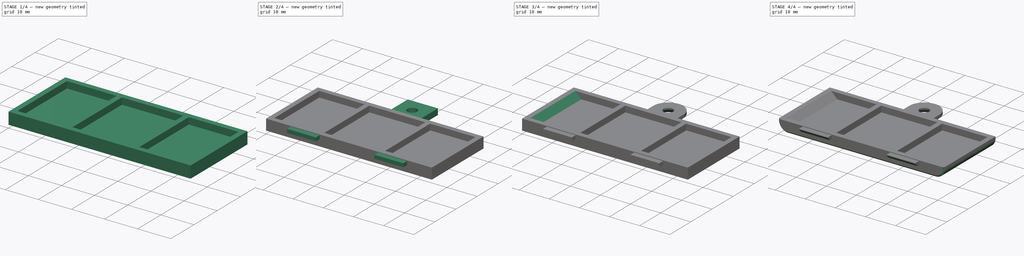
[diagram: build sequence overview — one tinted view per stage of 4, left to right]
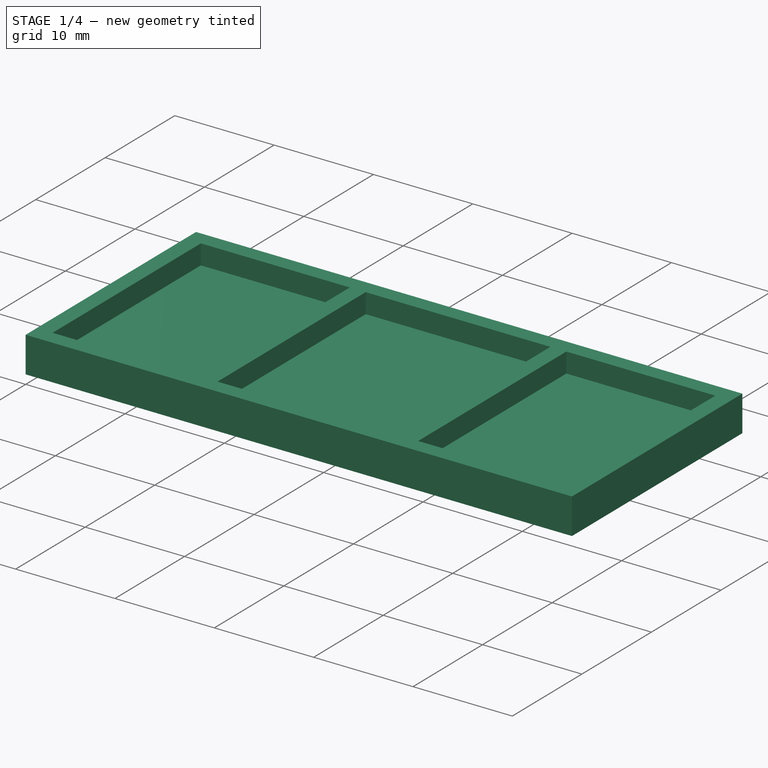
[diagram: stage 1 of 4 — iso view after this stage's code; geometry added in this stage tinted green]
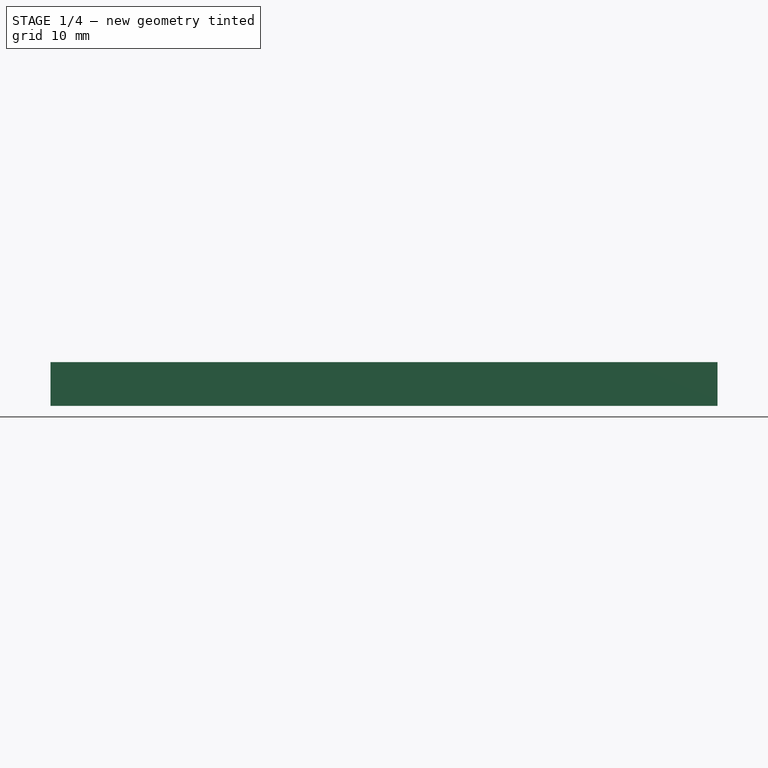
[diagram: stage 1 of 4 — front view after this stage's code; geometry added in this stage tinted green]
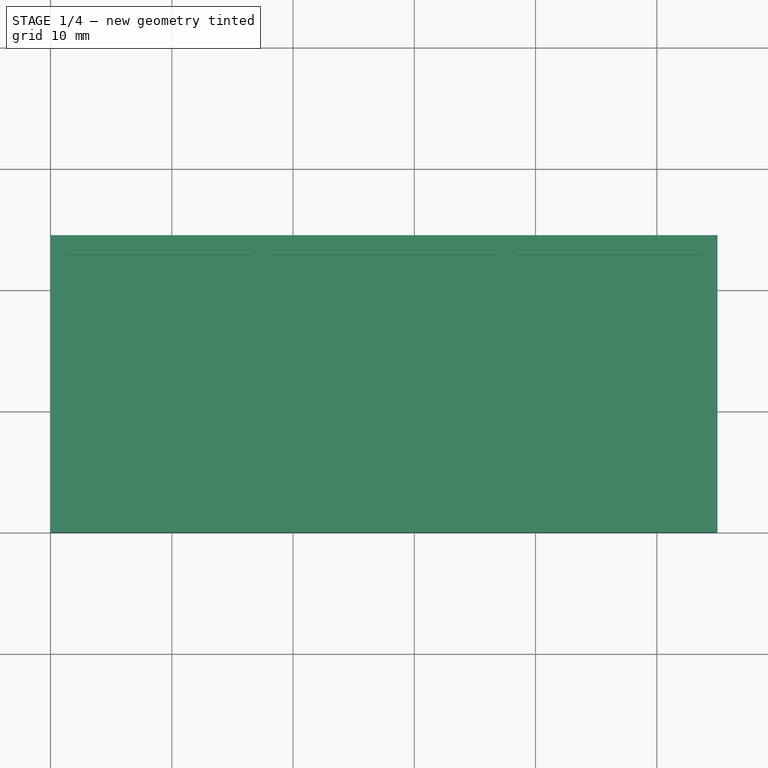
[diagram: stage 1 of 4 — top view after this stage's code; geometry added in this stage tinted green]
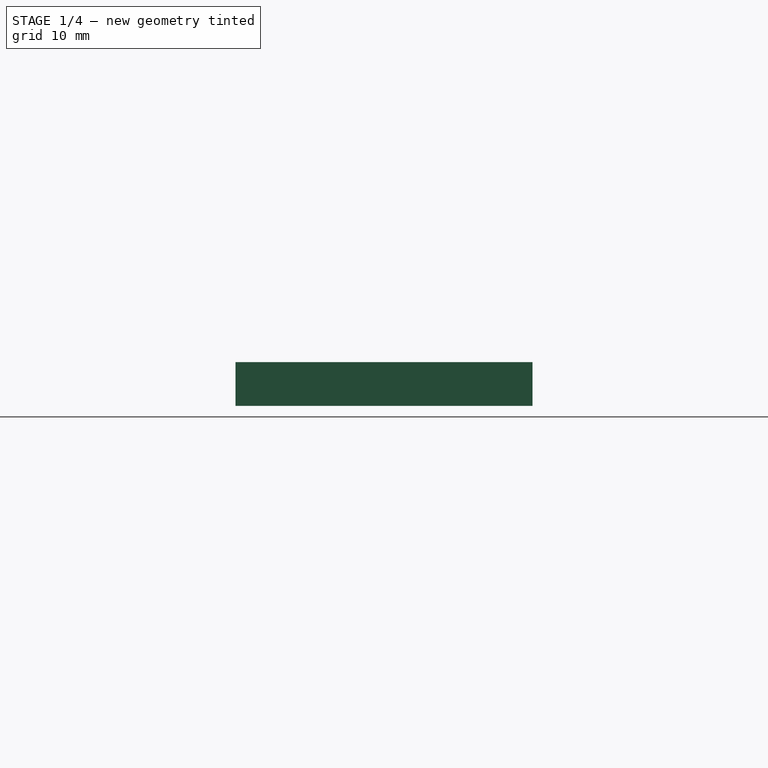
[diagram: stage 1 of 4 — right view after this stage's code; geometry added in this stage tinted green]
FCSTD DOCUMENT  (FreeCAD 0.16R)
Label: battery_lid_fillet
License: All rights reserved
LicenseURL: http://en.wikipedia.org/wiki/All_rights_reserved
objects: Sketcher::SketchObject×6, PartDesign::Chamfer×5, PartDesign::Pad×4, PartDesign::Pocket×2, PartDesign::Fillet×2, App::DocumentObjectGroup×1
note: 25 computed .brp shape members not serialized (recipe doc carries the construction recipe); baked Part::Feature solids carry a one-line shape summary decoded from their .brp

FEATURE [App::DocumentObjectGroup] Group
FEATURE [Sketcher::SketchObject] Sketch
  sketch-geometry (4):
    g0: LineSegment StartX=0 StartY=0 StartZ=0 EndX=55 EndY=0 EndZ=0
    g1: LineSegment StartX=55 StartY=0 StartZ=0 EndX=55 EndY=24.5 EndZ=0
    g2: LineSegment StartX=55 StartY=24.5 StartZ=0 EndX=0 EndY=24.5 EndZ=0
    g3: LineSegment StartX=0 StartY=24.5 StartZ=0 EndX=0 EndY=0 EndZ=0
  constraints (11):
    c: Coincident(g0,g1)
    c: Coincident(g1,g2)
    c: Coincident(g2,g3)
    c: Coincident(g3,g0)
    c: Horizontal(g0)
    c: Horizontal(g2)
    c: Vertical(g1)
    c: Vertical(g3)
    c: Coincident(g0,g-1)
    c: Distance(g3) = 24.5
    c: Distance(g0) = 55
FEATURE [PartDesign::Pad] Pad
  Length = 3.6
  Length2 = 100
  Sketch = -> Sketch
  Type = 0
FEATURE [Sketcher::SketchObject] Sketch001
  ExternalGeometry = -> [Pad]
  Placement = pos=(0,0,3.6) rot=(0,0,1;0rad)
  Support = -> Pad [Face6]
  sketch-geometry (4):
    g0: LineSegment StartX=1.6 StartY=22.9 StartZ=0 EndX=53.4 EndY=22.9 EndZ=0
    g1: LineSegment StartX=53.4 StartY=22.9 StartZ=0 EndX=53.4 EndY=1.6 EndZ=0
    g2: LineSegment StartX=53.4 StartY=1.6 StartZ=0 EndX=1.6 EndY=1.6 EndZ=0
    g3: LineSegment StartX=1.6 StartY=1.6 StartZ=0 EndX=1.6 EndY=22.9 EndZ=0
  constraints (12):
    c: Coincident(g0,g1)
    c: Coincident(g1,g2)
    c: Coincident(g2,g3)
    c: Coincident(g3,g0)
    c: Horizontal(g0)
    c: Horizontal(g2)
    c: Vertical(g1)
    c: Vertical(g3)
    c: DistanceX(g-1,g2) = 1.6
    c: DistanceX(g1,g-6) = 1.6
    c: DistanceY(g0,g-5) = 1.6
    c: DistanceY(g-1,g2) = 1.6
FEATURE [PartDesign::Pocket] Pocket
  Length = 2
  Sketch = -> Sketch001
  Type = 0
FEATURE [Sketcher::SketchObject] Sketch002
  ExternalGeometry = -> [Pocket]
  Placement = pos=(0,0,1.6) rot=(0,0,1;0rad)
  Support = -> Pocket [Face11]
  sketch-geometry (8):
    g0: LineSegment StartX=16.6 StartY=22.9 StartZ=0 EndX=18.2 EndY=22.9 EndZ=0
    g1: LineSegment StartX=18.2 StartY=22.9 StartZ=0 EndX=18.2 EndY=1.6 EndZ=0
    g2: LineSegment StartX=18.2 StartY=1.6 StartZ=0 EndX=16.6 EndY=1.6 EndZ=0
    g3: LineSegment StartX=16.6 StartY=1.6 StartZ=0 EndX=16.6 EndY=22.9 EndZ=0
    g4: LineSegment StartX=36.8 StartY=22.9 StartZ=0 EndX=38.4 EndY=22.9 EndZ=0
    g5: LineSegment StartX=38.4 StartY=22.9 StartZ=0 EndX=38.4 EndY=1.6 EndZ=0
    g6: LineSegment StartX=38.4 StartY=1.6 StartZ=0 EndX=36.8 EndY=1.6 EndZ=0
    g7: LineSegment StartX=36.8 StartY=1.6 StartZ=0 EndX=36.8 EndY=22.9 EndZ=0
  constraints (24):
    c: Coincident(g0,g1)
    c: Coincident(g1,g2)
    c: Coincident(g2,g3)
    c: Coincident(g3,g0)
    c: Horizontal(g0)
    c: Horizontal(g2)
    c: Vertical(g1)
    c: Vertical(g3)
    c: PointOnObject(g0,g-3)
    c: PointOnObject(g1,g-4)
    c: Coincident(g4,g5)
    c: Coincident(g5,g6)
    c: Coincident(g6,g7)
    c: Coincident(g7,g4)
    c: Horizontal(g4)
    c: Horizontal(g6)
    c: Vertical(g5)
    c: Vertical(g7)
    c: PointOnObject(g5,g-4)
    c: DistanceX(g2,g1) = 1.6
    c: DistanceX(g6,g5) = 1.6
    c: PointOnObject(g4,g-3)
    c: DistanceX(g-4,g2) = 15
    c: DistanceX(g5,g-4) = 15
FEATURE [PartDesign::Pad] Pad001
  Length = 2
  Length2 = 100
  Sketch = -> Sketch002
  Type = 0
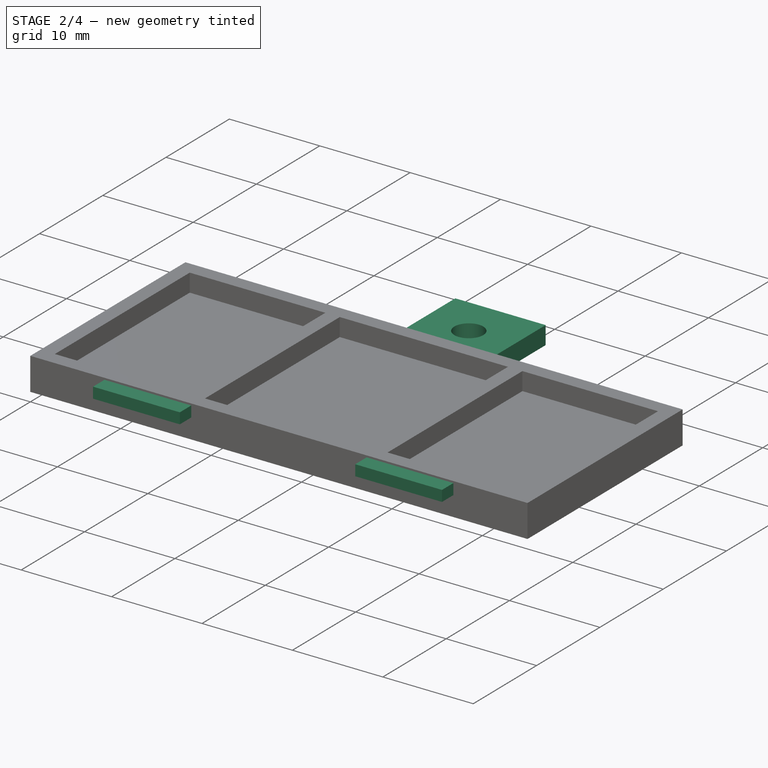
[diagram: stage 2 of 4 — iso view after this stage's code; geometry added in this stage tinted green]
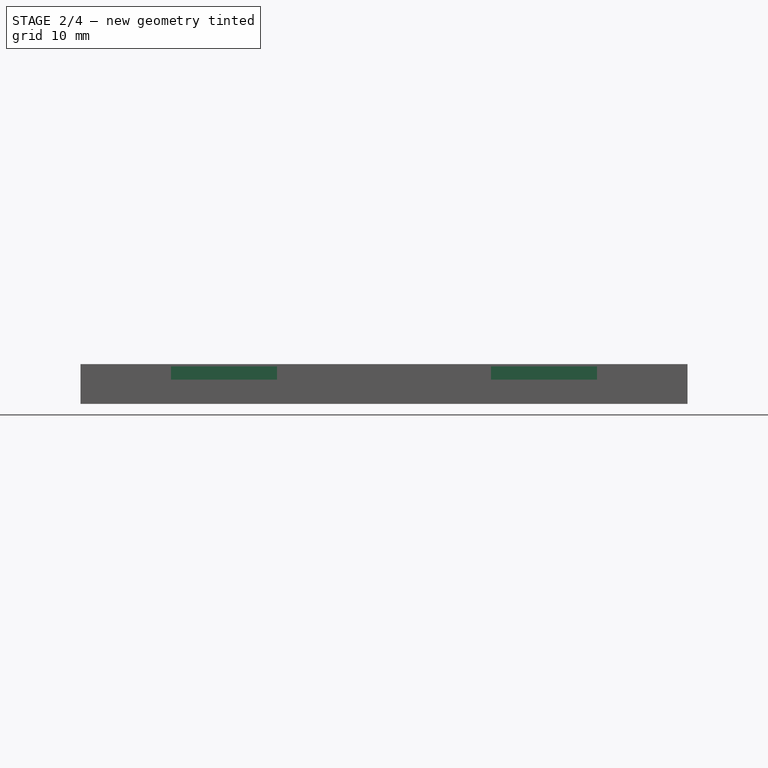
[diagram: stage 2 of 4 — front view after this stage's code; geometry added in this stage tinted green]
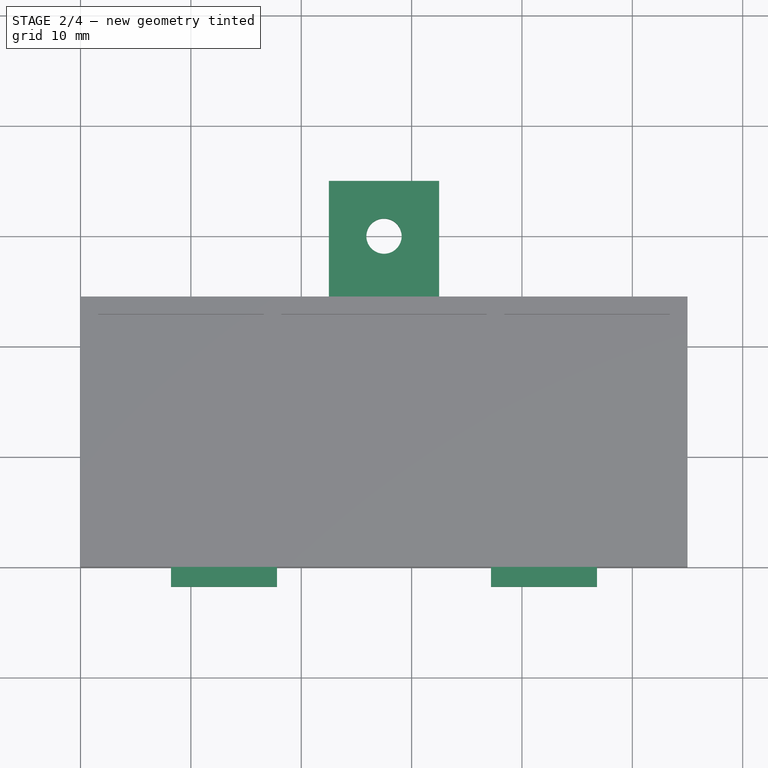
[diagram: stage 2 of 4 — top view after this stage's code; geometry added in this stage tinted green]
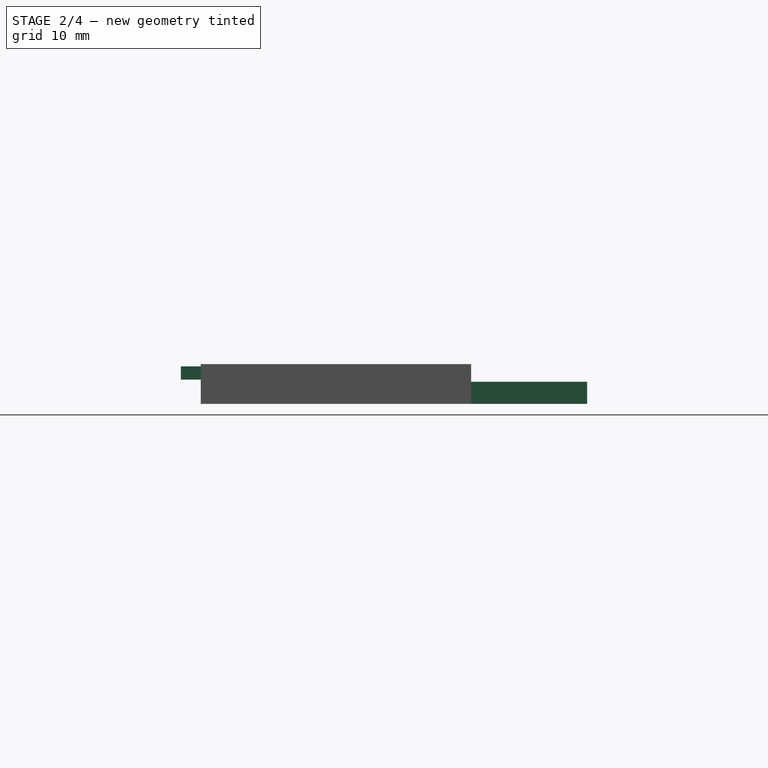
[diagram: stage 2 of 4 — right view after this stage's code; geometry added in this stage tinted green]
FEATURE [Sketcher::SketchObject] Sketch003
  ExternalGeometry = -> [Pad001]
  Placement = pos=(0,0,0) rot=(1,0,0;1.5708rad)
  Support = -> Pad001 [Face1]
  sketch-geometry (8):
    g0: LineSegment StartX=8.2 StartY=3.4 StartZ=0 EndX=17.8 EndY=3.4 EndZ=0
    g1: LineSegment StartX=17.8 StartY=3.4 StartZ=0 EndX=17.8 EndY=2.2 EndZ=0
    g2: LineSegment StartX=17.8 StartY=2.2 StartZ=0 EndX=8.2 EndY=2.2 EndZ=0
    g3: LineSegment StartX=8.2 StartY=2.2 StartZ=0 EndX=8.2 EndY=3.4 EndZ=0
    g4: LineSegment StartX=37.2 StartY=3.4 StartZ=0 EndX=46.8 EndY=3.4 EndZ=0
    g5: LineSegment StartX=46.8 StartY=3.4 StartZ=0 EndX=46.8 EndY=2.2 EndZ=0
    g6: LineSegment StartX=46.8 StartY=2.2 StartZ=0 EndX=37.2 EndY=2.2 EndZ=0
    g7: LineSegment StartX=37.2 StartY=2.2 StartZ=0 EndX=37.2 EndY=3.4 EndZ=0
  constraints (24):
    c: Coincident(g0,g1)
    c: Coincident(g1,g2)
    c: Coincident(g2,g3)
    c: Coincident(g3,g0)
    c: Horizontal(g0)
    c: Horizontal(g2)
    c: Vertical(g1)
    c: Vertical(g3)
    c: Coincident(g4,g5)
    c: Coincident(g5,g6)
    c: Coincident(g6,g7)
    c: Coincident(g7,g4)
    c: Horizontal(g4)
    c: Horizontal(g6)
    c: Vertical(g5)
    c: Vertical(g7)
    c: Equal(g0,g4)
    c: Equal(g1,g7)
    c: Distance(g2) = 9.6
    c: DistanceX(g-1,g2) = 8.2
    c: DistanceY(g-1,g2) = 2.2
    c: DistanceX(g5,g-4) = 8.2
    c: DistanceY(g-4,g5) = 2.2
    c: Distance(g3) = 1.2
FEATURE [PartDesign::Pad] Pad002
  Length = 1.8
  Length2 = 100
  Sketch = -> Sketch003
  Type = 0
FEATURE [Sketcher::SketchObject] Sketch004
  ExternalGeometry = -> [Pad002]
  Placement = pos=(0,24.5,0) rot=(0,0.707107,0.707107;3.14159rad)
  Support = -> Pad002 [Face2]
  sketch-geometry (4):
    g0: LineSegment StartX=-32.5 StartY=0 StartZ=0 EndX=-22.5 EndY=0 EndZ=0
    g1: LineSegment StartX=-22.5 StartY=0 StartZ=0 EndX=-22.5 EndY=2 EndZ=0
    g2: LineSegment StartX=-22.5 StartY=2 StartZ=0 EndX=-32.5 EndY=2 EndZ=0
    g3: LineSegment StartX=-32.5 StartY=2 StartZ=0 EndX=-32.5 EndY=0 EndZ=0
  constraints (12):
    c: Coincident(g0,g1)
    c: Coincident(g1,g2)
    c: Coincident(g2,g3)
    c: Coincident(g3,g0)
    c: Horizontal(g0)
    c: Horizontal(g2)
    c: Vertical(g1)
    c: Vertical(g3)
    c: PointOnObject(g0,g-1)
    c: DistanceX(g-3,g0) = 22.5
    c: DistanceX(g0,g-1) = 22.5
    c: Distance(g3) = 2
FEATURE [PartDesign::Pad] Pad003
  Length = 10.5
  Length2 = 100
  Sketch = -> Sketch004
  Type = 0
FEATURE [Sketcher::SketchObject] Sketch005
  ExternalGeometry = -> [Pad003]
  Placement = pos=(0,0,0) rot=(1,0,0;3.14159rad)
  Support = -> Pad003 [Face18]
  sketch-geometry (1):
    g0: Circle CenterX=27.5 CenterY=-30 CenterZ=0 NormalX=0 NormalY=0 NormalZ=1 Radius=1.6
  constraints (3):
    c: Radius(g0) = 1.6
    c: DistanceX(g-4,g0) = 5
    c: DistanceY(g0,g-4) = 5.5
FEATURE [PartDesign::Pocket] Pocket001
  Length = 5
  Sketch = -> Sketch005
  Type = 1
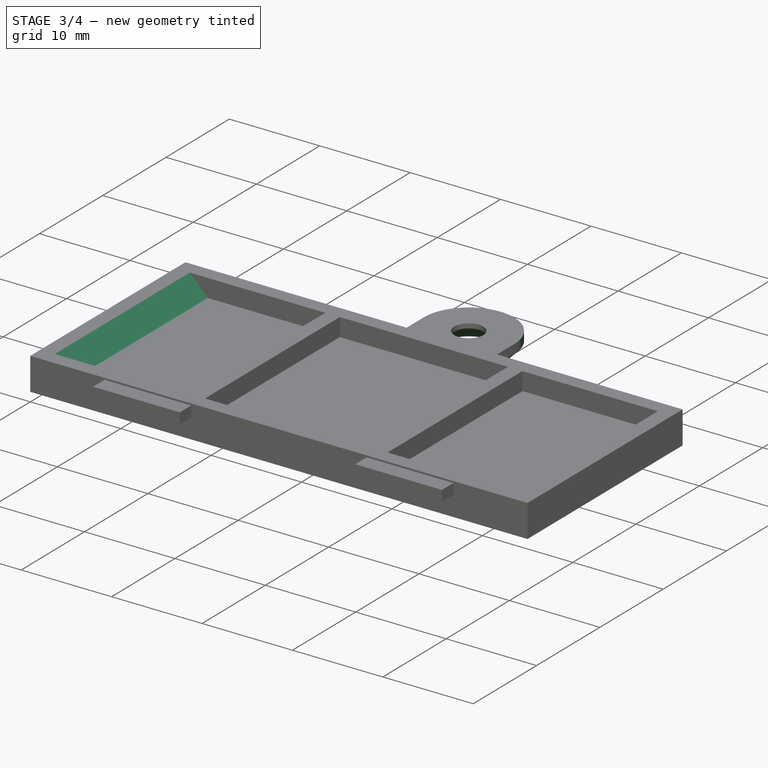
[diagram: stage 3 of 4 — iso view after this stage's code; geometry added in this stage tinted green]
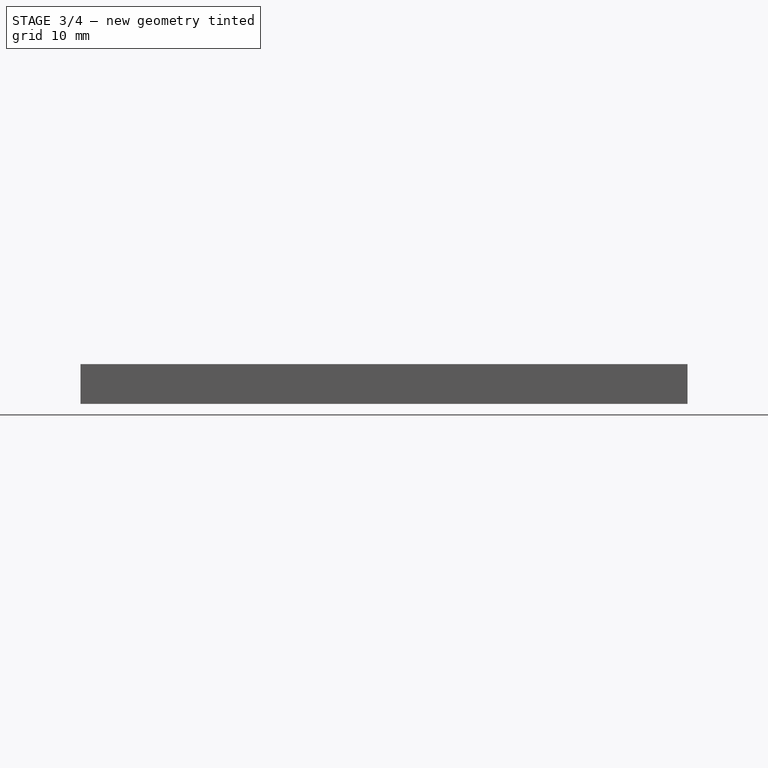
[diagram: stage 3 of 4 — front view after this stage's code; geometry added in this stage tinted green]
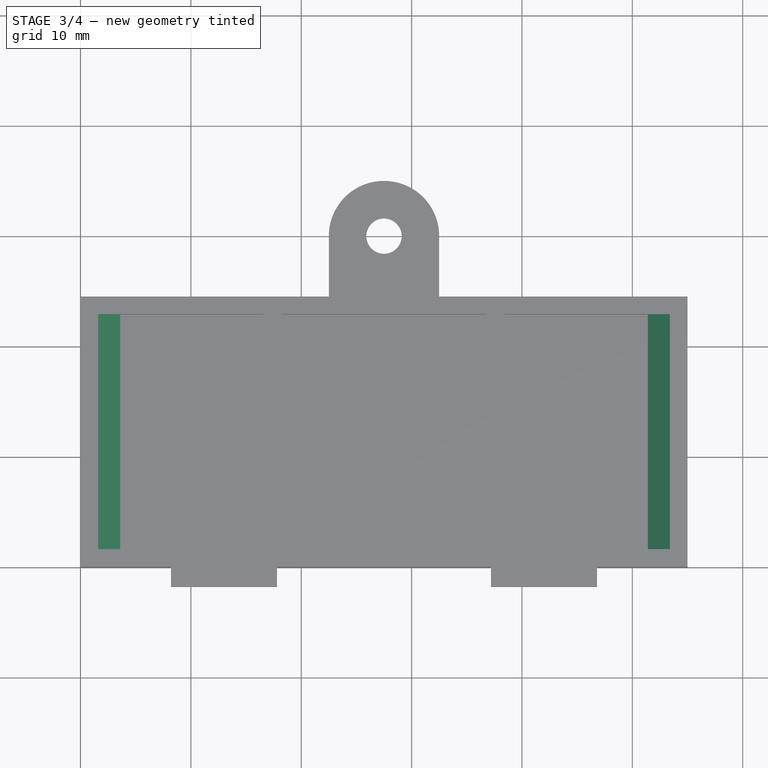
[diagram: stage 3 of 4 — top view after this stage's code; geometry added in this stage tinted green]
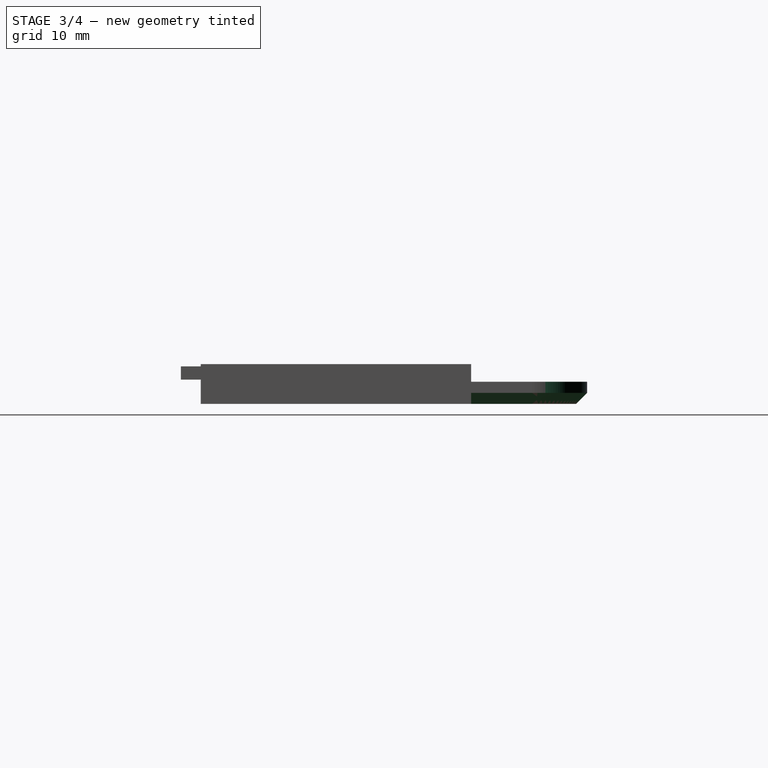
[diagram: stage 3 of 4 — right view after this stage's code; geometry added in this stage tinted green]
FEATURE [PartDesign::Chamfer] Chamfer
  Base = -> Pocket001 [Edge65,Edge87]
  Size = 1.99
FEATURE [PartDesign::Fillet] Fillet
  Base = -> Chamfer [Edge85,Edge91]
  Radius = 4.99
FEATURE [PartDesign::Chamfer] Chamfer001
  Base = -> Fillet [Edge4,Edge12,Edge22,Edge21,Edge20]
  Size = 1
FEATURE [PartDesign::Chamfer] Chamfer002
  Base = -> Chamfer001 [Edge33]
  Size = 1.5
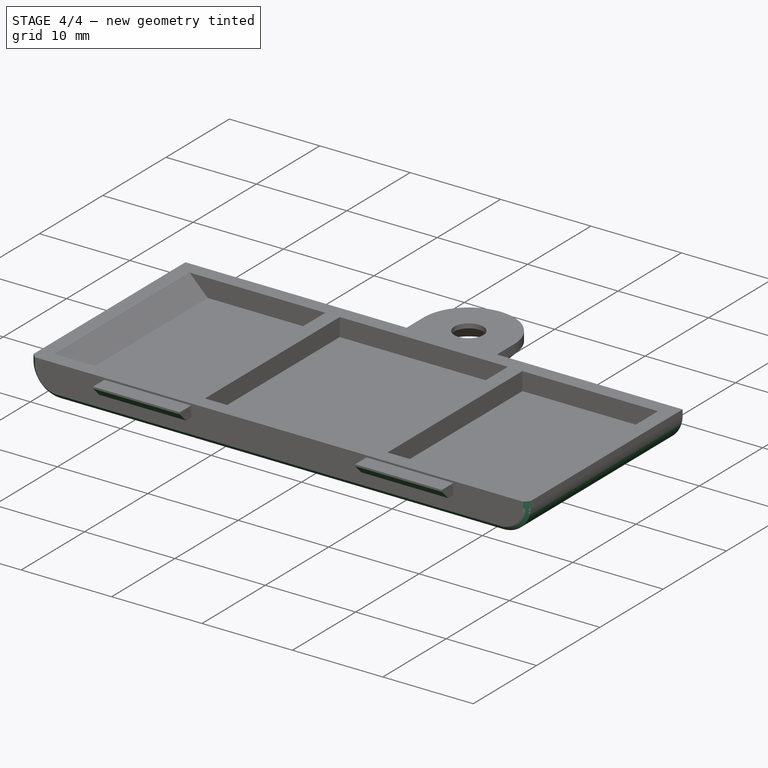
[diagram: stage 4 of 4 — iso view after this stage's code; geometry added in this stage tinted green]
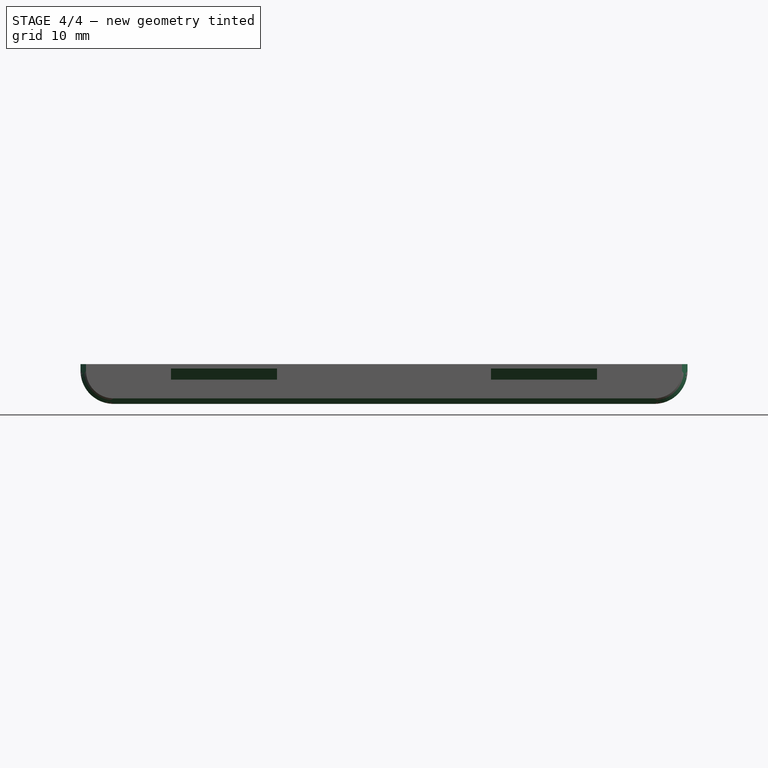
[diagram: stage 4 of 4 — front view after this stage's code; geometry added in this stage tinted green]
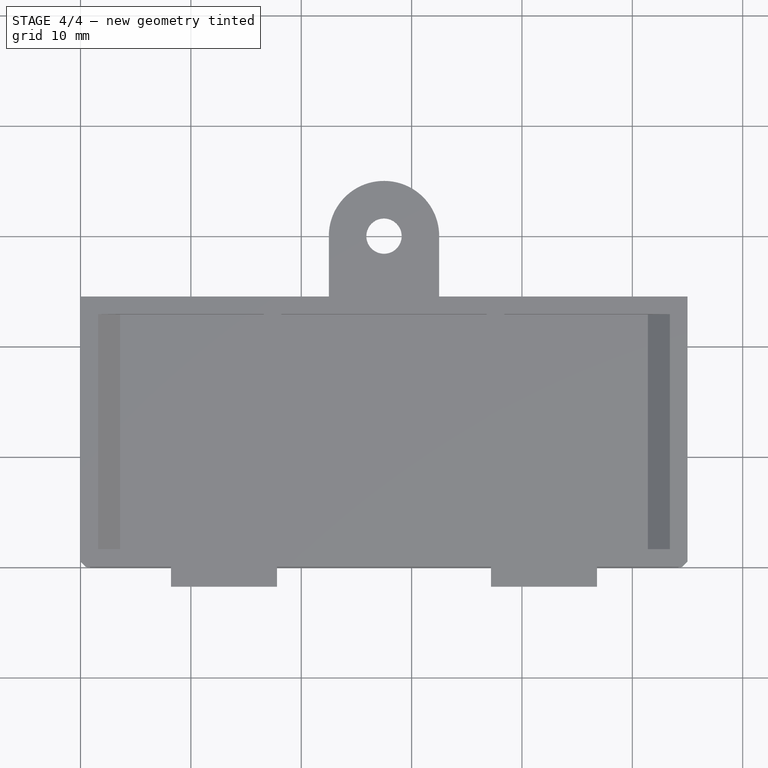
[diagram: stage 4 of 4 — top view after this stage's code; geometry added in this stage tinted green]
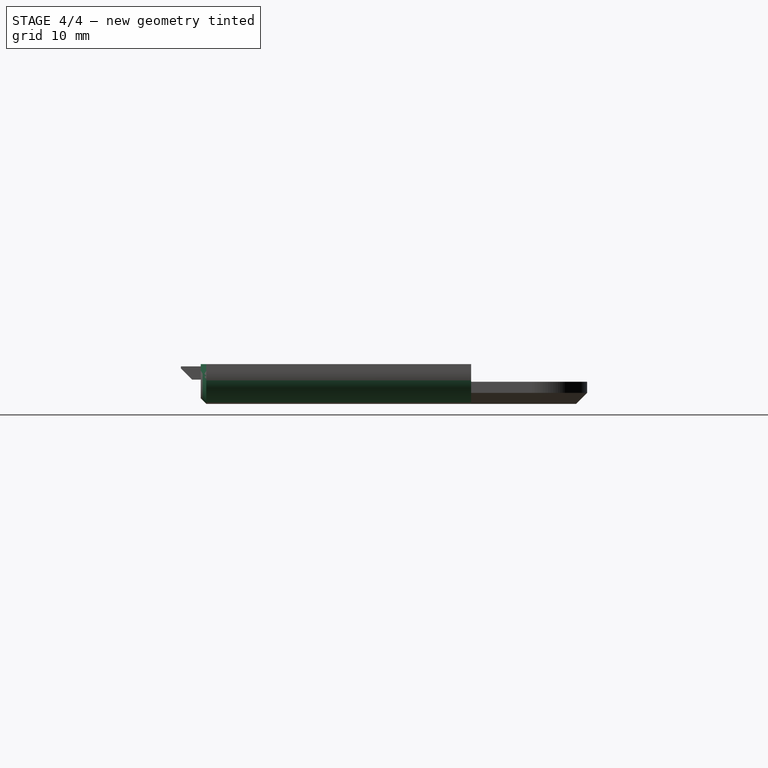
[diagram: stage 4 of 4 — right view after this stage's code; geometry added in this stage tinted green]
FEATURE [PartDesign::Chamfer] Chamfer003
  Base = -> Chamfer002 [Edge107,Edge99]
  Size = 1
FEATURE [PartDesign::Fillet] Fillet001
  Base = -> Chamfer003 [Edge25,Edge27]
  Radius = 3
FEATURE [PartDesign::Chamfer] Chamfer004
  Base = -> Fillet001 [Edge4]
  Size = 0.5
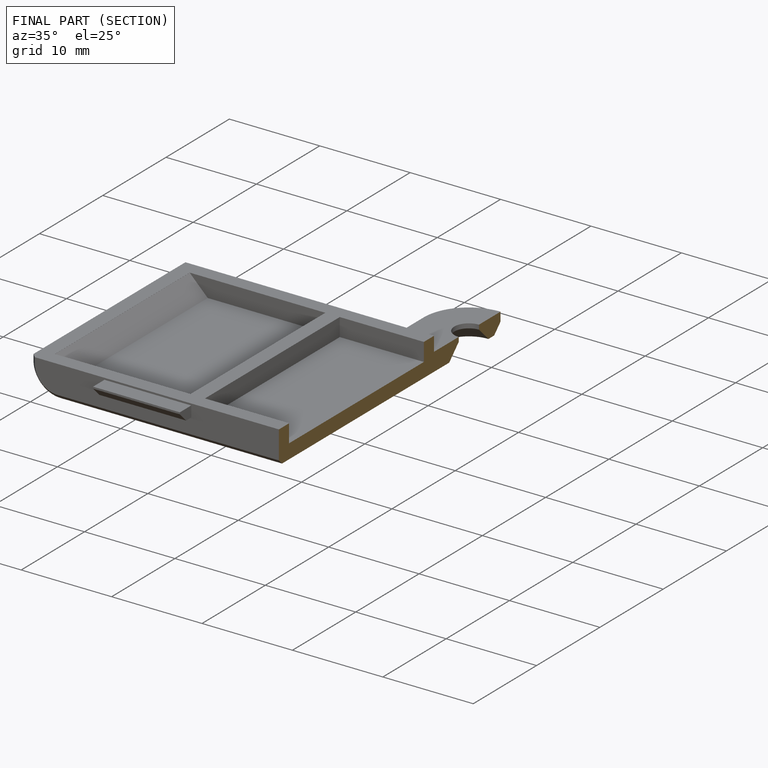
[diagram: finished part — half-section view (interior)]
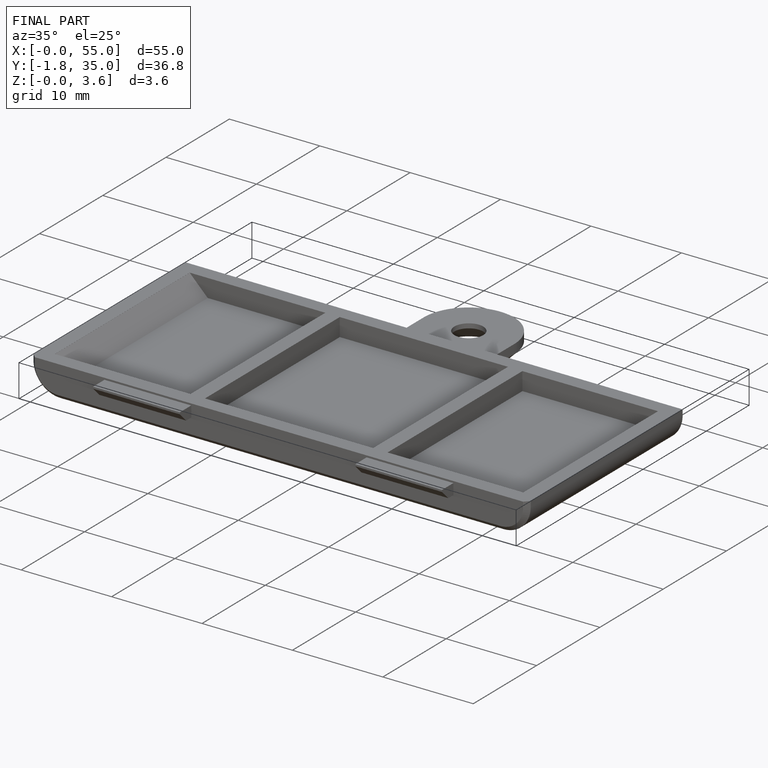
[diagram: finished part — iso view with bounding-box wireframe]
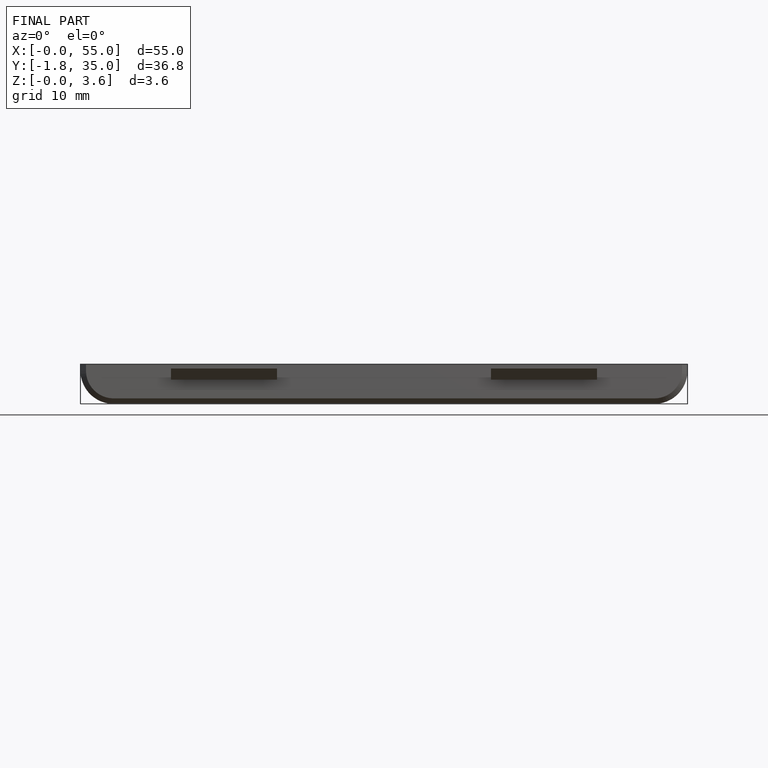
[diagram: finished part — front view with bounding-box wireframe]
